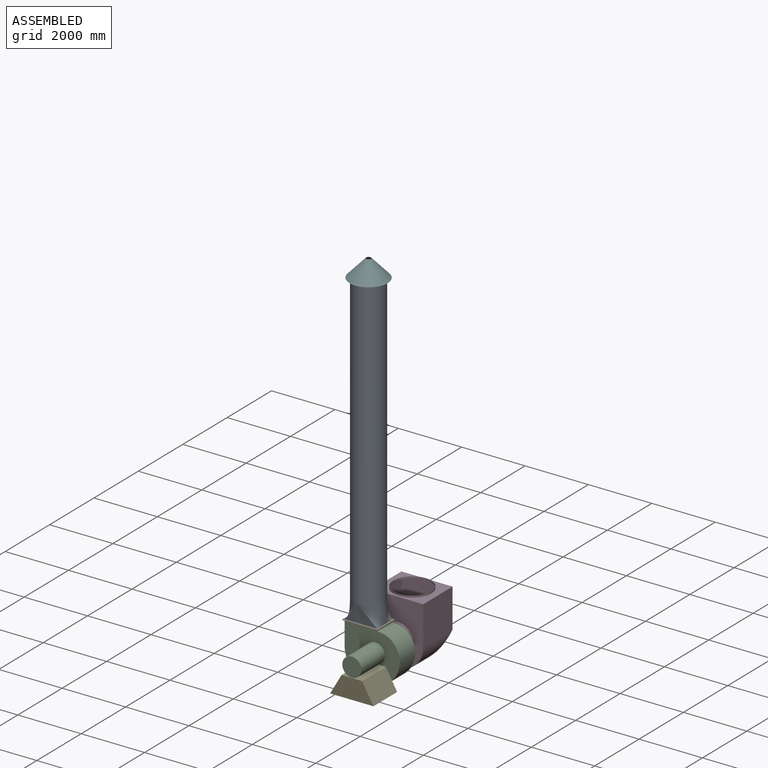
[diagram: assembled view]
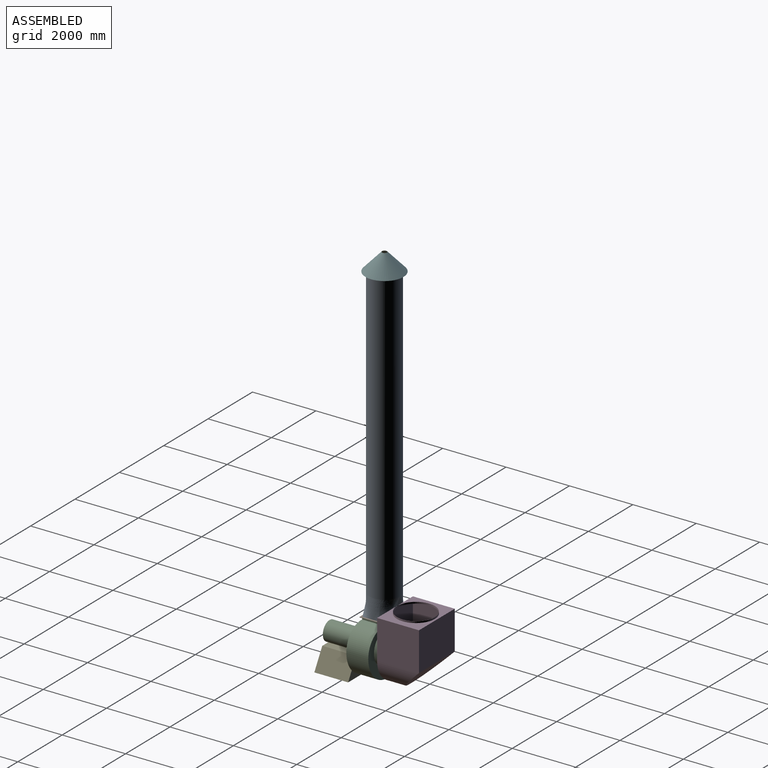
[diagram: assembled view, second angle]
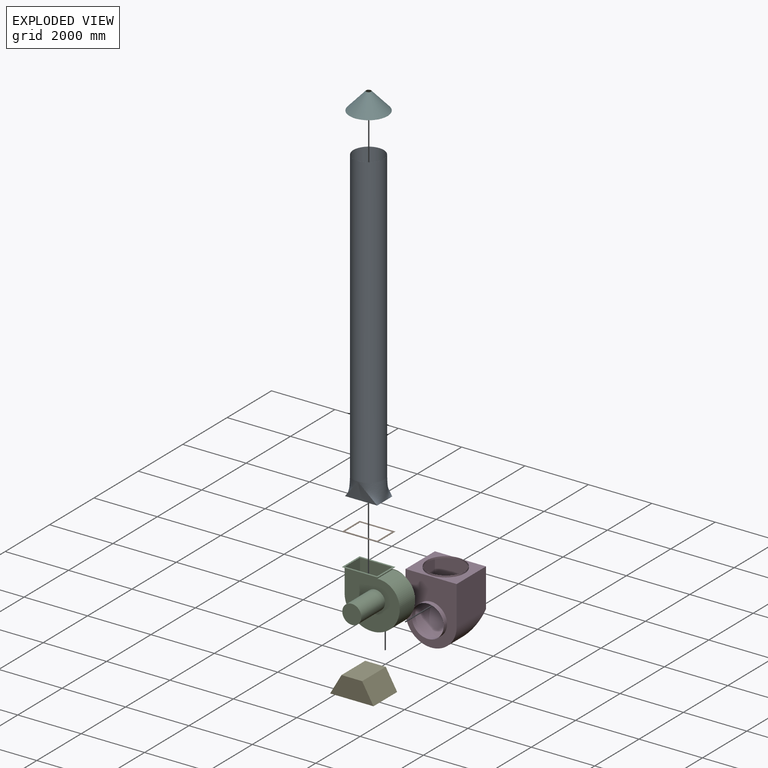
[diagram: exploded view]
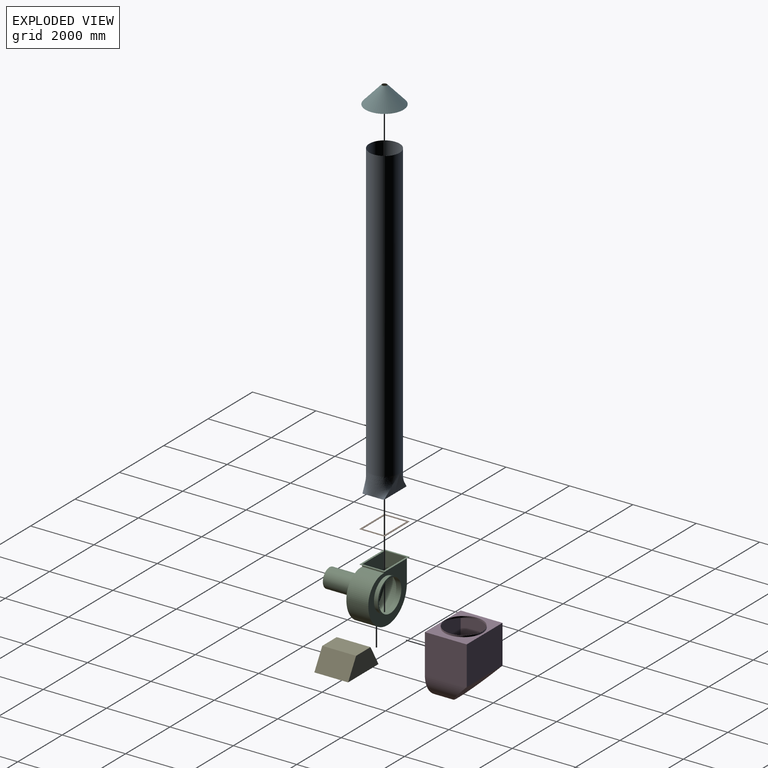
[diagram: exploded view, second angle]
ASSEMBLY  parts=6 mates=5
PART A: 20 faces, bbox 1029.3x965x9756.5 mm
  f0: plane 1016.3x679.75mm, normal (0,0,-1), area 5611.9mm2, adj f1,f2,f3,f4,f5,f6,f7,f8
  f1: bspline ~609.28x513.08mm, area 314939.2mm2, adj f0,f2,f3,f9
  f2: bspline ~711.04x609.28mm, area 157386.9mm2, adj f0,f1,f6
  f3: bspline ~609.28x513.08mm, area 314939.2mm2, adj f0,f1,f4,f9
  f4: bspline ~711.04x609.28mm, area 157386.9mm2, adj f0,f3,f8
  f5: bspline ~609.28x513.08mm, area 314939.2mm2, adj f0,f6,f7,f9
  f6: bspline ~752.92x609.28mm, area 157386.9mm2, adj f0,f2,f5
  f7: bspline ~609.28x513.08mm, area 314939.2mm2, adj f0,f5,f8,f9
  f8: bspline ~752.92x609.28mm, area 157386.9mm2, adj f0,f4,f7
  f9: cylinder r=479.43mm len=9144mm, axis (0,0,-1), area 27544618.6mm2, adj f1,f3,f5,f7,f10
  f10: plane 958.85x958.85mm, normal (0,0,1), area 4774.1mm2, adj f9,f19
  f11: offset ~612.46x518.79mm, area 313327.6mm2, adj f0,f12,f13,f19
  f12: offset ~756.09x612.46mm, area 157064.9mm2, adj f0,f11,f16,f19
  f13: offset ~612.46x518.79mm, area 313297.7mm2, adj f0,f11,f14,f19
  f14: offset ~756.09x612.46mm, area 157064.9mm2, adj f0,f13,f18,f19
  f15: offset ~612.46x523.86mm, area 313298.6mm2, adj f0,f16,f17,f19
  f16: offset ~756.09x612.46mm, area 157064.9mm2, adj f0,f12,f15,f19
  f17: offset ~612.46x518.79mm, area 313297.6mm2, adj f0,f15,f18,f19
  f18: offset ~756.09x612.46mm, area 157064.9mm2, adj f0,f14,f17,f19
  f19: cylinder r=477.84mm len=9144.04mm, axis (0,0,-1), area 27453266.8mm2, adj f10,f11,f12,f13,f14,f15,f16,f17
PART B: 10 faces, bbox 1124x793.8x6.4 mm
  f0: plane 1123.95x6.35mm, normal (0,-1,0), area 7137.1mm2, adj f1,f7,f8,f9
  f1: plane 793.75x6.35mm, normal (1,0,0), area 5040.3mm2, adj f0,f2,f8,f9
  f2: plane 1123.95x6.35mm, normal (0,1,0), area 7137.1mm2, adj f1,f7,f8,f9
  f3: plane 679.45x6.35mm, normal (1,0,0), area 4314.5mm2, adj f4,f6,f8,f9
  f4: plane 1016x6.35mm, normal (0,-1,0), area 6451.6mm2, adj f3,f5,f8,f9
  f5: plane 679.45x6.35mm, normal (-1,0,0), area 4314.5mm2, adj f4,f6,f8,f9
  f6: plane 1016x6.35mm, normal (0,1,0), area 6451.6mm2, adj f3,f5,f8,f9
  f7: plane 793.75x6.35mm, normal (-1,0,0), area 5040.3mm2, adj f0,f2,f8,f9
  f8: plane 1123.95x793.75mm, normal (0,0,1), area 201814.1mm2, adj f0,f1,f2,f3,f4,f5,f6,f7
  f9: plane 1123.95x793.75mm, normal (0,0,-1), area 201814.1mm2, adj f0,f1,f2,f3,f4,f5,f6,f7
PART C: 48 faces, bbox 1785.9x1914.5x1611.4 mm
  f0: plane 1016x2.54mm, normal (0,1,0), area 2580.6mm2, adj f1,f10,f13,f26
  f1: plane 1123.95x793.75mm, normal (0,0,1), area 201814.1mm2, adj f0,f9,f10,f13,f14,f15,f17,f18
  f2: cylinder r=509.59mm len=1019.18mm, axis (0,-1,0), area 482876.4mm2, adj f6,f22
  f3: plane 735.92x692.15mm, normal (-1,0,0), area 509366mm2, adj f5,f6,f7,f16
  f4: plane 692.15x62.96mm, normal (1,0,0), area 43577mm2, adj f5,f6,f8,f16
  f5: plane 1738.26x1605.05mm, normal (0,-1,0), area 2045074mm2, adj f3,f4,f7,f8,f16,f23
  f6: plane 1738.26x1605.05mm, normal (0,1,0), area 1512081.1mm2, adj f2,f3,f4,f7,f8,f16
  f7: cylinder r=869.13mm len=1738.26mm, axis (0,1,0), area 1925696.9mm2, adj f3,f5,f6,f8
  f8: cylinder r=662.32mm len=708.03mm, axis (0,1,0), area 725276.3mm2, adj f4,f5,f6,f7
  f9: plane 793.75x6.35mm, normal (-1,0,0), area 5040.3mm2, adj f1,f15,f16,f18
  f10: plane 742.27x679.45mm, normal (1,0,0), area 504334.3mm2, adj f0,f1,f11,f14,f38
  f11: cylinder r=862.78mm len=1725.56mm, axis (0,1,0), area 1876551.7mm2, adj f10,f12,f14,f38
  f12: cylinder r=655.97mm len=708.04mm, axis (0,1,0), area 709775.7mm2, adj f11,f13,f14,f38
  f13: plane 679.45x76.16mm, normal (-1,0,0), area 51747.6mm2, adj f0,f1,f12,f14,f38
  f14: plane 1725.56x1605.05mm, normal (0,-1,0), area 1509397mm2, adj f1,f10,f11,f12,f13,f19
  f15: plane 1123.95x6.35mm, normal (0,1,0), area 7137.1mm2, adj f1,f9,f16,f17
  f16: plane 1123.95x793.75mm, normal (0,0,-1), area 180120.6mm2, adj f3,f4,f5,f6,f9,f15,f17,f18
  f17: plane 793.75x6.35mm, normal (1,0,0), area 5040.3mm2, adj f1,f15,f16,f18
  f18: plane 1123.95x6.35mm, normal (0,-1,0), area 7137.1mm2, adj f1,f9,f16,f17
  f19: cylinder r=503.24mm len=1006.48mm, axis (0,1,0), area 511996.2mm2, adj f14,f20
  f20: plane 1108.08x1108.08mm, normal (0,1,0), area 168733.6mm2, adj f19,f21
  f21: cylinder r=554.04mm len=1108.08mm, axis (0,1,0), area 16578.8mm2, adj f20,f22
  f22: plane 1108.08x1108.08mm, normal (0,-1,0), area 148528.6mm2, adj f2,f21
  f23: cylinder r=300.04mm len=1066.8mm, axis (0,1,0), area 2011122mm2, adj f5,f24
  f24: plane 600.08x600.08mm, normal (0,-1,0), area 282814mm2, adj f23
  f25: cylinder r=507.05mm len=1014.1mm, axis (0,-1,0), area 495642.3mm2, adj f30,f45
  f26: plane 1118.87x788.67mm, normal (0,0,-1), area 186052.9mm2, adj f0,f33,f34,f37,f38,f39,f40,f42
  f27: plane 738.46x687.07mm, normal (1,0,0), area 507372.7mm2, adj f29,f30,f31,f41
  f28: plane 687.07x68.23mm, normal (-1,0,0), area 46879.6mm2, adj f29,f30,f32,f41
  f29: plane 1733.18x1605.05mm, normal (0,1,0), area 2040693.1mm2, adj f27,f28,f31,f32,f41,f46
  f30: plane 1733.18x1605.05mm, normal (0,-1,0), area 1511044.4mm2, adj f25,f27,f28,f31,f32,f41
  f31: cylinder r=866.59mm len=1733.18mm, axis (0,1,0), area 1905976.9mm2, adj f27,f29,f30,f32
  f32: cylinder r=659.78mm len=708.03mm, axis (0,1,0), area 719065.8mm2, adj f28,f29,f30,f31
  f33: plane 788.67x1.27mm, normal (1,0,0), area 1001.6mm2, adj f26,f40,f41,f43
  f34: plane 739.73x681.99mm, normal (-1,0,0), area 504487.4mm2, adj f26,f35,f38,f39
  f35: cylinder r=865.32mm len=1730.64mm, axis (0,1,0), area 1889112mm2, adj f34,f36,f38,f39
  f36: cylinder r=658.51mm len=708.03mm, axis (0,1,0), area 713309mm2, adj f35,f37,f38,f39
  f37: plane 681.99x70.87mm, normal (1,0,0), area 48333.7mm2, adj f26,f36,f38,f39
  f38: plane 1730.64x1605.05mm, normal (0,-1,0), area 11742.9mm2, adj f10,f11,f12,f13,f26,f34,f35,f36
  f39: plane 1730.64x1605.05mm, normal (0,1,0), area 1510507.6mm2, adj f26,f34,f35,f36,f37,f44
  f40: plane 1118.87x1.27mm, normal (0,-1,0), area 1421mm2, adj f26,f33,f41,f42
  f41: plane 1118.87x788.67mm, normal (0,0,1), area 179120.6mm2, adj f27,f28,f29,f30,f33,f40,f42,f43
  f42: plane 788.67x1.27mm, normal (-1,0,0), area 1001.6mm2, adj f26,f40,f41,f43
  f43: plane 1118.87x1.27mm, normal (0,1,0), area 1421mm2, adj f26,f33,f41,f42
  f44: cylinder r=505.78mm len=1011.56mm, axis (0,1,0), area 498436.7mm2, adj f39,f45
  f45: plane 1014.1x1014.1mm, normal (0,-1,0), area 4041mm2, adj f25,f44
  f46: cylinder r=297.5mm len=1066.8mm, axis (0,1,0), area 1994096.6mm2, adj f29,f47
  f47: plane 595x595mm, normal (0,1,0), area 278045.9mm2, adj f46
PART D: 20 faces, bbox 1612.3x1473.2x2076.1 mm
  f0: cylinder r=503.24mm len=1006.48mm, axis (0,-1,0), area 481878.8mm2, adj f2,f3
  f1: cylinder r=501.34mm len=1002.68mm, axis (0,-1,0), area 486038.7mm2, adj f2,f12
  f2: plane 1006.48x1006.48mm, normal (0,-1,0), area 5988.1mm2, adj f0,f1
  f3: plane 2025.34x1612.28mm, normal (0,-1,0), area 2190890.7mm2, adj f0,f4,f5,f6,f7
  f4: plane 1320.8x1219.2mm, normal (1,0,0), area 1610319.4mm2, adj f3,f5,f7,f8
  f5: cylinder r=806.14mm len=1612.28mm, axis (0,-1,0), area 2045287.6mm2, adj f3,f4,f6,f11
  f6: plane 1320.8x1219.2mm, normal (-1,0,0), area 1610319.4mm2, adj f3,f5,f7,f8
  f7: plane 1612.28x1320.8mm, normal (0,0,1), area 1010182.9mm2, adj f3,f4,f6,f8,f9
  f8: plane 1612.28x1219.2mm, normal (0,1,0), area 1965692.1mm2, adj f4,f6,f7,f11
  f9: cylinder r=596.9mm len=1193.8mm, axis (0,0,-1), area 190522mm2, adj f7,f10
  f10: plane 1193.8x1193.8mm, normal (0,0,1), area 7104.7mm2, adj f9,f18
  f11: plane 1612.28x806.14mm, normal (0,0.71,-0.71), area 1443630.2mm2, adj f5,f8
  f12: plane 2021.55x1608.49mm, normal (0,1,0), area 2184400.8mm2, adj f1,f13,f14,f15,f16
  f13: plane 1317.01x1217.3mm, normal (-1,0,0), area 1603193.6mm2, adj f12,f14,f16,f17,f19
  f14: cylinder r=804.24mm len=1608.49mm, axis (0,-1,0), area 2031952.1mm2, adj f12,f13,f15,f19
  f15: plane 1317.01x1217.3mm, normal (1,0,0), area 1603193.6mm2, adj f12,f14,f16,f17,f19
  f16: plane 1608.49x1317.01mm, normal (0,0,-1), area 1006171.7mm2, adj f12,f13,f15,f17,f18
  f17: plane 1608.49x1216.52mm, normal (0,-1,0), area 1956749.4mm2, adj f13,f15,f16,f19
  f18: cylinder r=595mm len=1190.01mm, axis (0,0,-1), area 197009.8mm2, adj f10,f16
  f19: plane 1608.49x805.03mm, normal (0,-0.71,0.71), area 1438630.3mm2, adj f13,f14,f15,f17
PART E: 12 faces, bbox 1367.6x1066.8x620.7 mm
  f0: plane 1066.8x650.88mm, normal (0,0,1), area 694353.5mm2, adj f1,f3,f4,f5
  f1: plane 1066.8x620.71mm, normal (-0.87,0,0.5), area 764615.1mm2, adj f0,f2,f3,f4
  f2: plane 1367.61x1066.8mm, normal (0,0,-1), area 1458968.5mm2, adj f1,f3,f4,f5
  f3: plane 1367.61x620.71mm, normal (0,-1,0), area 626450.1mm2, adj f0,f1,f2,f5
  f4: plane 1367.61x620.71mm, normal (0,1,0), area 626450.1mm2, adj f0,f1,f2,f5
  f5: plane 1066.8x620.71mm, normal (0.87,0,0.5), area 764615.1mm2, adj f0,f2,f3,f4
  f6: plane 1054.1x643.54mm, normal (0,0,-1), area 678358.3mm2, adj f7,f9,f10,f11
  f7: plane 1054.1x608.01mm, normal (0.87,0,-0.5), area 740054.5mm2, adj f6,f8,f9,f10
  f8: plane 1345.62x1054.1mm, normal (0,0,1), area 1418412.8mm2, adj f7,f9,f10,f11
  f9: plane 1345.62x608.01mm, normal (0,1,0), area 604716.4mm2, adj f6,f7,f8,f11
  f10: plane 1345.62x608.01mm, normal (0,-1,0), area 604716.4mm2, adj f6,f7,f8,f11
  f11: plane 1054.1x608.01mm, normal (-0.87,0,-0.5), area 740054.5mm2, adj f6,f8,f9,f10
PART F: 4 faces, bbox 1198.7x1198.7x556.6 mm
  f0: cone r=77.58mm half-angle=46.8deg, axis (0,0,1), area 916.7mm2, adj f1,f3
  f1: cone r=76.2mm half-angle=43.2deg, axis (0,0,-1), area 1613901mm2, adj f0,f2
  f2: cone r=597.97mm half-angle=46.8deg, axis (0,0,1), area 7137mm2, adj f1,f3
  f3: cone r=599.36mm half-angle=43.2deg, axis (0,0,-1), area 1620521.5mm2, adj f0,f2
PLACE A t=(261.65,789.27,-1441.41)mm
PLACE B t=(261.65,789.27,-1441.41)mm
PLACE C t=(261.65,789.27,-1441.41)mm
PLACE D t=(261.65,789.27,-1441.41)mm
PLACE E t=(261.65,789.27,-1441.41)mm
PLACE F t=(261.65,789.27,1723.98)mm
MATE fastened A.f0 <-> B.f8  axis (0,0,-1) through (-2193.4,449.55,251.44)mm
MATE fastened D.f0 <-> C.f2  axis (0,-1,0) through (-1225.03,1290.92,-445.48)mm
MATE fastened C.f1 <-> B.f9  axis (0,0,1) through (-1685.4,789.27,245.09)mm
MATE fastened E.f3 <-> C.f2  axis (0,-1,0) through (-1225.03,-623.6,-445.48)mm
MATE fastened F.f2 <-> A.f9  axis (0,0,1) through (-1685.4,789.27,9998.69)mm
